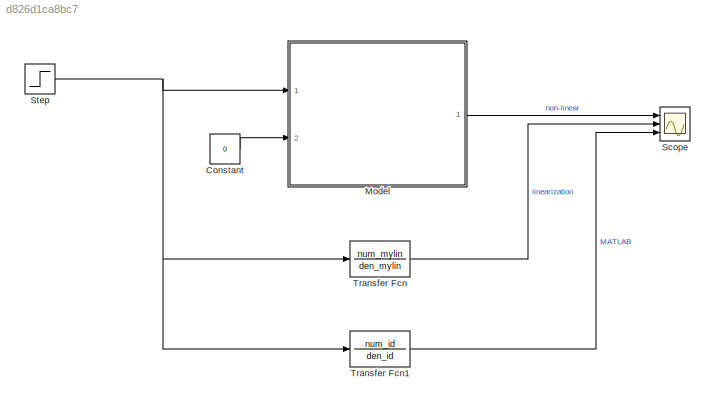
MODEL slx_d826d1ca8bc7
KIND model
CONFIG AbsTol = auto
CONFIG EnableMultiTasking = off
CONFIG FixedStep = auto
CONFIG MaxStep = auto
CONFIG MinStep = auto
CONFIG RelTol = 1e-3
CONFIG SampleTimeConstraint = Unconstrained
CONFIG SolverName = VariableStepAuto
CONFIG StartTime = 0.0
CONFIG StopTime = 10.0
BLOCK [Constant] Constant
  Value = 0
BLOCK [ModelReference] Model
  ModelNameDialog = motor_cardynamic.slx
  ModelReferenceVersion = 1.10
  Ports = [2, 1]
BLOCK [Scope] Scope
  Floating = off
  NumInputPorts = 3
  Ports = [3]
  ScopeSpecificationString = Simulink.scopes.TimeScopeBlockCfg('CurrentConfiguration', extmgr.ConfigurationSet(extmgr.Configuration('Core','General UI',true),extmgr.Configuration('Core','Source UI',true),extmgr.Configuration('Sources','WiredSimulink',true),extmgr.Configuration('Visuals','Time Domain',true,'SerializedDisplays',{struct('MinYLimReal','-0.08179','MaxYLimReal','0.73612','YLabelReal','','MinYLimMag','0.00000','MaxY...<+1473ch>
BLOCK [Step] Step
  SampleTime = 0
BLOCK [TransferFcn] Transfer Fcn
  Denominator = den_mylin
  Numerator = num_mylin
BLOCK [TransferFcn] Transfer Fcn1
  Denominator = den_id
  Numerator = num_id
LINE Constant:1 -> Model:2
LINE Model:1 -> Scope:1
NET Step:1 -> Model:1, Transfer Fcn1:1, Transfer Fcn:1
LINE Transfer Fcn1:1 -> Scope:3
LINE Transfer Fcn:1 -> Scope:2
note: NET lines group one-source signal fan-out (src -> all destinations, sorted); 1:1 wires keep LINE
